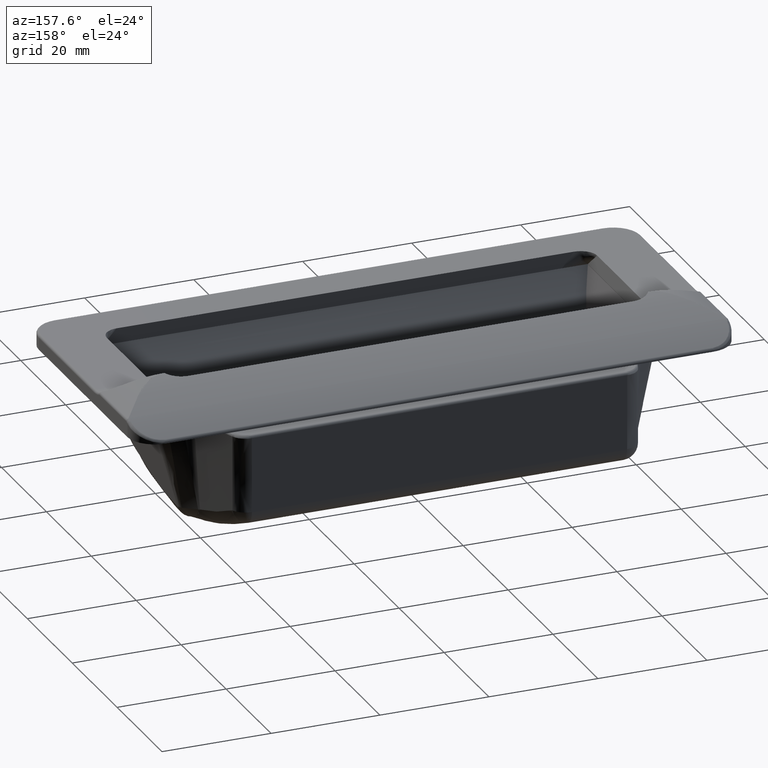
[diagram: clean part render]
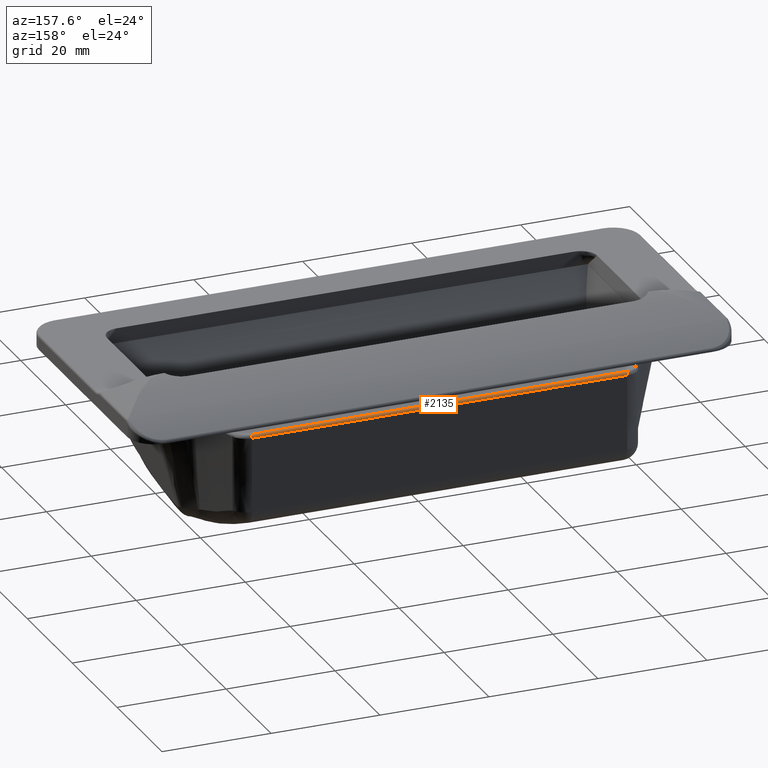
[diagram: same view with one face highlighted and labeled with its STEP entity id]
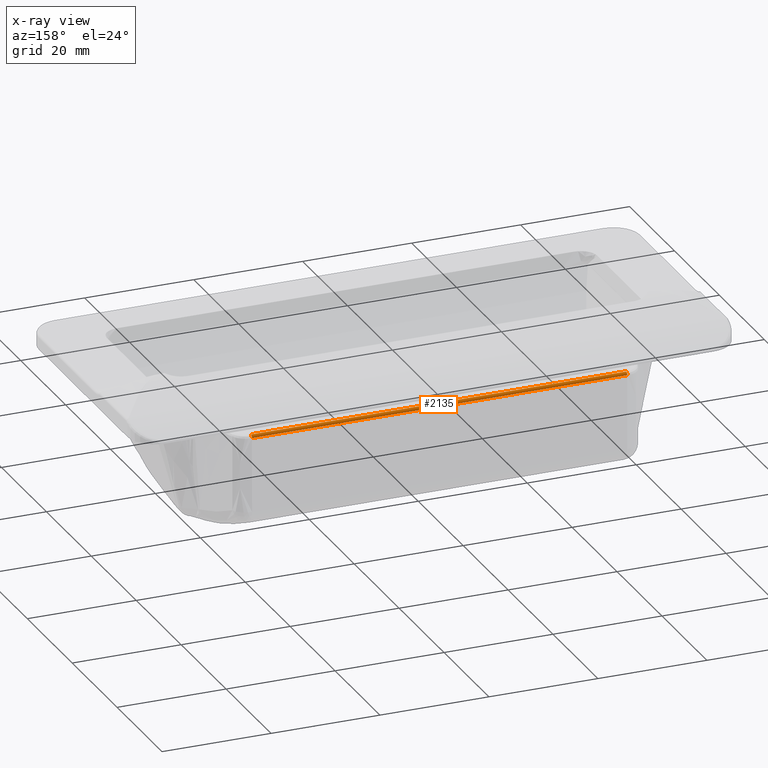
[diagram: x-ray of the same camera — body ghosted, the highlighted face saturated]
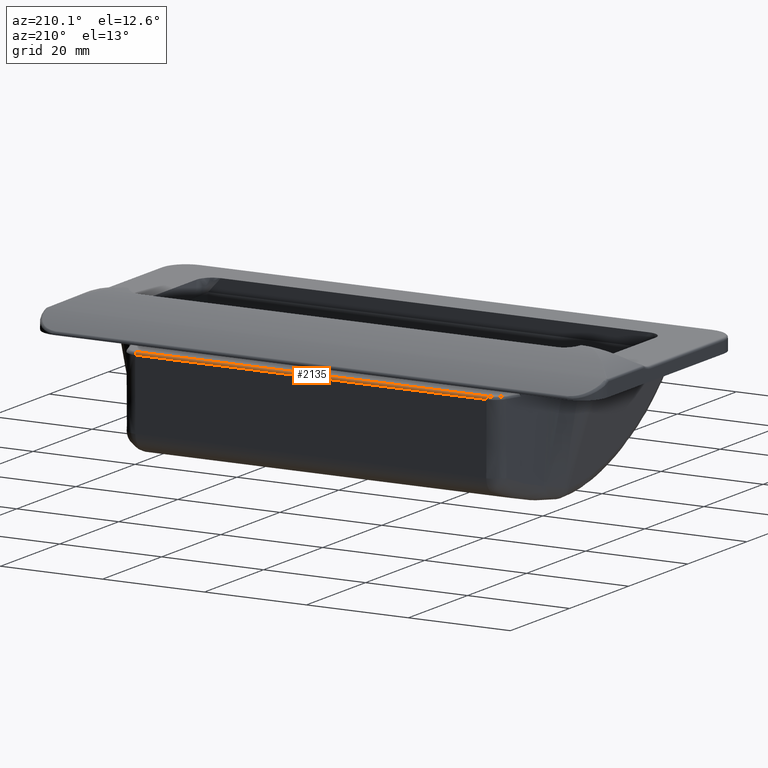
[diagram: same view with one face highlighted and labeled with its STEP entity id]
A machine part, auxiliary view. The second image highlights one B-rep face of the part: STEP entity #2135.
The next image is the same camera in x-ray: the body ghosted, the highlighted face saturated — about 0% of this face is hidden behind the body in this view.
A second angle (auxiliary view) of the same face is appended — the face is thin or edge-on in the first view.
In plain terms, the highlighted cylindrical surface (edge-blend (fillet) strip) has radius 0.5 mm, axis along (-1, 0, 0).
Its self-contained STEP definition (entity closure, byte-faithful):
#83=LINE('',#3067,#181);
#84=LINE('',#3068,#182);
#181=VECTOR('',#2487,68.9126148326999);
#182=VECTOR('',#2488,68.9126148326999);
#279=CYLINDRICAL_SURFACE('',#2280,0.5);
#316=FACE_OUTER_BOUND('',#459,.T.);
#459=EDGE_LOOP('',(#1403,#1404,#1405,#1406));
#605=CIRCLE('',#2279,0.5);
#606=CIRCLE('',#2281,0.5);
#848=VERTEX_POINT('',#3050);
#849=VERTEX_POINT('',#3051);
#850=VERTEX_POINT('',#3064);
#851=VERTEX_POINT('',#3065);
#1055=EDGE_CURVE('',#848,#849,#605,.T.);
#1058=EDGE_CURVE('',#850,#851,#606,.T.);
#1059=EDGE_CURVE('',#851,#849,#83,.T.);
#1060=EDGE_CURVE('',#848,#850,#84,.T.);
#1403=ORIENTED_EDGE('',*,*,#1058,.T.);
#1404=ORIENTED_EDGE('',*,*,#1059,.T.);
#1405=ORIENTED_EDGE('',*,*,#1055,.F.);
#1406=ORIENTED_EDGE('',*,*,#1060,.T.);
#2135=ADVANCED_FACE('',(#316),#279,.T.);
#2279=AXIS2_PLACEMENT_3D('',#3052,#2481,#2482);
#2280=AXIS2_PLACEMENT_3D('',#3063,#2483,#2484);
#2281=AXIS2_PLACEMENT_3D('',#3066,#2485,#2486);
#2481=DIRECTION('center_axis',(-1.,0.,0.));
#2482=DIRECTION('ref_axis',(0.,0.,1.));
#2483=DIRECTION('center_axis',(-1.,0.,0.));
#2484=DIRECTION('ref_axis',(0.,0.707106781186552,0.707106781186543));
#2485=DIRECTION('center_axis',(-1.,0.,0.));
#2486=DIRECTION('ref_axis',(0.,0.,1.));
#2487=DIRECTION('',(-1.,0.,0.));
#2488=DIRECTION('',(1.,0.,0.));
#3050=CARTESIAN_POINT('',(-34.4563074163499,48.9999999999996,-1.2));
#3051=CARTESIAN_POINT('',(-34.4563074163499,49.4999999999996,-1.7));
#3052=CARTESIAN_POINT('Origin',(-34.4563074163499,48.9999999999996,-1.7));
#3063=CARTESIAN_POINT('Origin',(0.,48.9999999999996,-1.7));
#3064=CARTESIAN_POINT('',(34.45630741635,48.9999999999996,-1.2));
#3065=CARTESIAN_POINT('',(34.45630741635,49.4999999999996,-1.69999999998846));
#3066=CARTESIAN_POINT('Origin',(34.45630741635,48.9999999999996,-1.7));
#3067=CARTESIAN_POINT('',(0.,49.4999999999996,-1.7));
#3068=CARTESIAN_POINT('',(0.,48.9999999999996,-1.2));